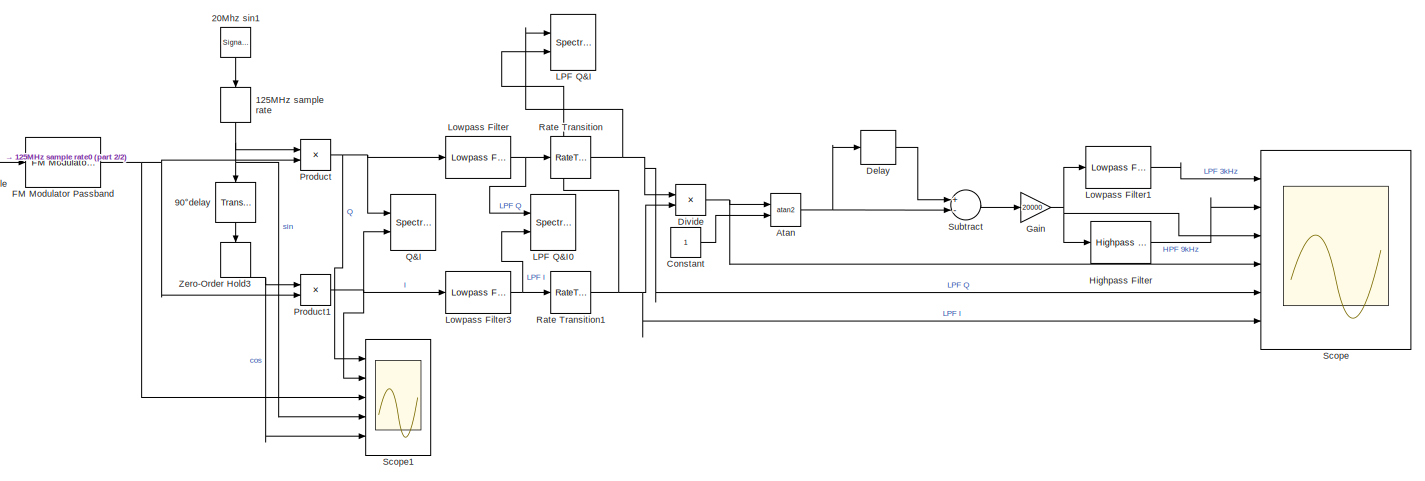
[diagram: root canvas - part 1/2, most of the canvas]
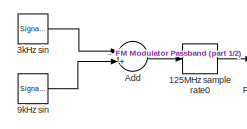
[diagram: root canvas - part 2/2, middle left region]
MODEL slx_3da0bc59892e
KIND model
CONFIG AbsTol = auto
CONFIG EnableMultiTasking = off
CONFIG FixedStep = auto
CONFIG MaxStep = auto
CONFIG MinStep = auto
CONFIG RelTol = 1e-3
CONFIG SampleTimeConstraint = Unconstrained
CONFIG Solver = VariableStepAuto
CONFIG SolverName = VariableStepAuto
CONFIG StartTime = 0.0
CONFIG StopTime = 0.05
BLOCK [ZeroOrderHold] 125MHz sample rate
  SampleTime = 8E-9
BLOCK [ZeroOrderHold] 125MHz sample rate0
  SampleTime = 8e-9
BLOCK [SignalGenerator] 20Mhz sin1
  Frequency = 20e6
  Ports = [0, 1]
BLOCK [SignalGenerator] 3kHz sin
  Frequency = 3000
  Ports = [0, 1]
BLOCK [TransportDelay] 90°delay
  DelayTime = 12.5e-9
  Ports = [1, 1]
BLOCK [SignalGenerator] 9kHz sin 
  Frequency = 9000
  Ports = [0, 1]
BLOCK [Sum] Add
  InputSameDT = off
  OutDataTypeStr = Inherit: Inherit via internal rule
  Ports = [2, 1]
  SaturateOnIntegerOverflow = off
BLOCK [Trigonometry] Atan
  ApproximationMethod = CORDIC
  NumberOfIterations = 15
  Operator = atan2
  Ports = [2, 1]
BLOCK [Constant] Constant
  OutDataTypeStr = fixdt(1,16,14)
  SampleTime = 5e-6
BLOCK [Delay] Delay
  DelayLength = 1
  InitialCondition = 0
  InputPortMap = u0
  Ports = [1, 1]
BLOCK [Product] Divide
  InputSameDT = off
  Inputs = */
  OutDataTypeStr = fixdt(1,16,14)
  OutMax = 0.06
  OutMin = 0
  Ports = [2, 1]
  RndMeth = Floor
  SaturateOnIntegerOverflow = off
BLOCK [Reference] FM Modulator Passband  REF=commanapbnd3/FM
Modulator
Passband
  Ports = [1, 1]
  SourceBlock = commanapbnd3/FM\nModulator\nPassband
  SourceProductBaseCode = CM
  SourceProductName = Communications Toolbox
  SourceType = FM Modulator Passband
BLOCK [Gain] Gain
  Gain = 20000
  OutDataTypeStr = Inherit: Inherit via internal rule
  ParamDataTypeStr = Inherit: Inherit via internal rule
  SaturateOnIntegerOverflow = off
BLOCK [Reference] Highpass Filter  REF=dspfdesign/Highpass Filter
  Ports = [1, 1]
  SourceBlock = dspfdesign/Highpass Filter
  SourceProductBaseCode = DS
  SourceProductName = DSP System Toolbox
  SourceType = dsp.HighpassFilter
BLOCK [SpectrumAnalyzer] LPF Q&I
  NumInputPorts = 2
  Ports = [2]
  ScopeSpecificationString = spbscopes.SpectrumAnalyzerBlockCfg('CurrentConfiguration', extmgr.ConfigurationSet(extmgr.Configuration('Core','General UI',true),extmgr.Configuration('Core','Source UI',true),extmgr.Configuration('Sources','WiredSimulink',true),extmgr.Configuration('Sources','SimulinkEvent',false),extmgr.Configuration('Sources','Simulink',false),extmgr.Configuration('Sources','SPTool',false),extmgr.Configuration(...<+3941ch>
BLOCK [SpectrumAnalyzer] LPF Q&I0
  NumInputPorts = 2
  Ports = [2]
  ScopeSpecificationString = spbscopes.SpectrumAnalyzerBlockCfg('CurrentConfiguration', extmgr.ConfigurationSet(extmgr.Configuration('Core','General UI',true),extmgr.Configuration('Core','Source UI',true),extmgr.Configuration('Sources','WiredSimulink',true),extmgr.Configuration('Sources','SimulinkEvent',false),extmgr.Configuration('Sources','Simulink',false),extmgr.Configuration('Sources','SPTool',false),extmgr.Configuration(...<+3903ch>
BLOCK [Reference] Lowpass Filter  REF=dspfdesign/Lowpass Filter
  Ports = [1, 1]
  SourceBlock = dspfdesign/Lowpass Filter
  SourceProductBaseCode = DS
  SourceProductName = DSP System Toolbox
  SourceType = dsp.LowpassFilter
BLOCK [Reference] Lowpass Filter1  REF=dspfdesign/Lowpass Filter
  Ports = [1, 1]
  SourceBlock = dspfdesign/Lowpass Filter
  SourceProductBaseCode = DS
  SourceProductName = DSP System Toolbox
  SourceType = dsp.LowpassFilter
BLOCK [Reference] Lowpass Filter3  REF=dspfdesign/Lowpass Filter
  Ports = [1, 1]
  SourceBlock = dspfdesign/Lowpass Filter
  SourceProductBaseCode = DS
  SourceProductName = DSP System Toolbox
  SourceType = dsp.LowpassFilter
BLOCK [Product] Product
  InputSameDT = off
  OutDataTypeStr = Inherit: Inherit via internal rule
  Ports = [2, 1]
  RndMeth = Floor
  SaturateOnIntegerOverflow = off
BLOCK [Product] Product1
  InputSameDT = off
  OutDataTypeStr = Inherit: Inherit via internal rule
  Ports = [2, 1]
  RndMeth = Floor
  SaturateOnIntegerOverflow = off
BLOCK [SpectrumAnalyzer] Q&I
  NumInputPorts = 2
  Ports = [2]
  ScopeSpecificationString = spbscopes.SpectrumAnalyzerBlockCfg('CurrentConfiguration', extmgr.ConfigurationSet(extmgr.Configuration('Core','General UI',true),extmgr.Configuration('Core','Source UI',true),extmgr.Configuration('Sources','WiredSimulink',true),extmgr.Configuration('Sources','SimulinkEvent',false),extmgr.Configuration('Sources','Simulink',false),extmgr.Configuration('Sources','SPTool',false),extmgr.Configuration(...<+3901ch>
BLOCK [RateTransition] Rate Transition
  OutPortSampleTimeMultiple = 625
  OutPortSampleTimeOpt = Multiple of input port sample time
BLOCK [RateTransition] Rate Transition1
  OutPortSampleTimeMultiple = 625
  OutPortSampleTimeOpt = Multiple of input port sample time
BLOCK [Scope] Scope
  Floating = off
  NumInputPorts = 6
  Ports = [6]
  ScopeSpecificationString = Simulink.scopes.TimeScopeBlockCfg('CurrentConfiguration', extmgr.ConfigurationSet(extmgr.Configuration('Core','General UI',true),extmgr.Configuration('Core','Source UI',true),extmgr.Configuration('Sources','WiredSimulink',true),extmgr.Configuration('Visuals','Time Domain',true,'SerializedDisplays',{struct('MinYLimReal','-210.2312','MaxYLimReal','190.95288','YLabelReal','','MinYLimMag',' 0.00000','...<+5018ch>
BLOCK [Scope] Scope1
  Floating = off
  NumInputPorts = 5
  Ports = [5]
  ScopeSpecificationString = Simulink.scopes.TimeScopeBlockCfg('CurrentConfiguration', extmgr.ConfigurationSet(extmgr.Configuration('Core','General UI',true),extmgr.Configuration('Core','Source UI',true),extmgr.Configuration('Sources','WiredSimulink',true,'DataLoggingVariableName','ScopeData1'),extmgr.Configuration('Visuals','Time Domain',true,'SerializedDisplays',{struct('MinYLimReal','-1.24752','MaxYLimReal','1.24753','YLab...<+3529ch>
BLOCK [Sum] Subtract
  InputSameDT = off
  Inputs = +-
  OutDataTypeStr = Inherit: Inherit via internal rule
  Ports = [2, 1]
  SaturateOnIntegerOverflow = off
BLOCK [ZeroOrderHold] Zero-Order Hold3
  SampleTime = 8E-9
LINE 125MHz sample rate0:1 -> FM Modulator Passband:1
NET 125MHz sample rate:1 -> 90°delay:1, Product:1, Scope1:4
LINE 20Mhz sin1:1 -> 125MHz sample rate:1
LINE 3kHz sin:1 -> Add:1
LINE 90°delay:1 -> Zero-Order Hold3:1
LINE 9kHz sin :1 -> Add:2
LINE Add:1 -> 125MHz sample rate0:1
NET Atan:1 -> Delay:1, Subtract:2
LINE Constant:1 -> Atan:2
LINE Delay:1 -> Subtract:1
NET Divide:1 -> Atan:1, Scope:4
NET FM Modulator Passband:1 -> Product1:2, Product:2, Scope1:3
NET Gain:1 -> Highpass Filter:1, Lowpass Filter1:1, Scope:3
LINE Highpass Filter:1 -> Scope:2
LINE Lowpass Filter1:1 -> Scope:1
NET Lowpass Filter3:1 -> LPF Q&I0:2, Rate Transition1:1
NET Lowpass Filter:1 -> LPF Q&I0:1, Rate Transition:1
NET Product1:1 -> Lowpass Filter3:1, Q&I:2, Scope1:2
NET Product:1 -> Lowpass Filter:1, Q&I:1, Scope1:1
NET Rate Transition1:1 -> Divide:2, LPF Q&I:2, Scope:6
NET Rate Transition:1 -> Divide:1, LPF Q&I:1, Scope:5
LINE Subtract:1 -> Gain:1
NET Zero-Order Hold3:1 -> Product1:1, Scope1:5
note: NET lines group one-source signal fan-out (src -> all destinations, sorted); 1:1 wires keep LINE
